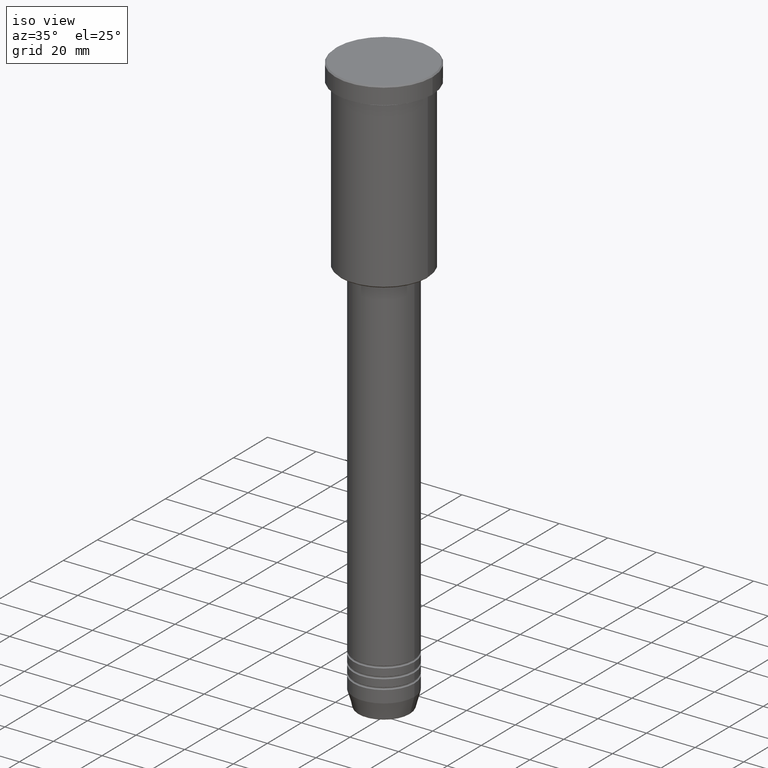
[diagram: clean part render]
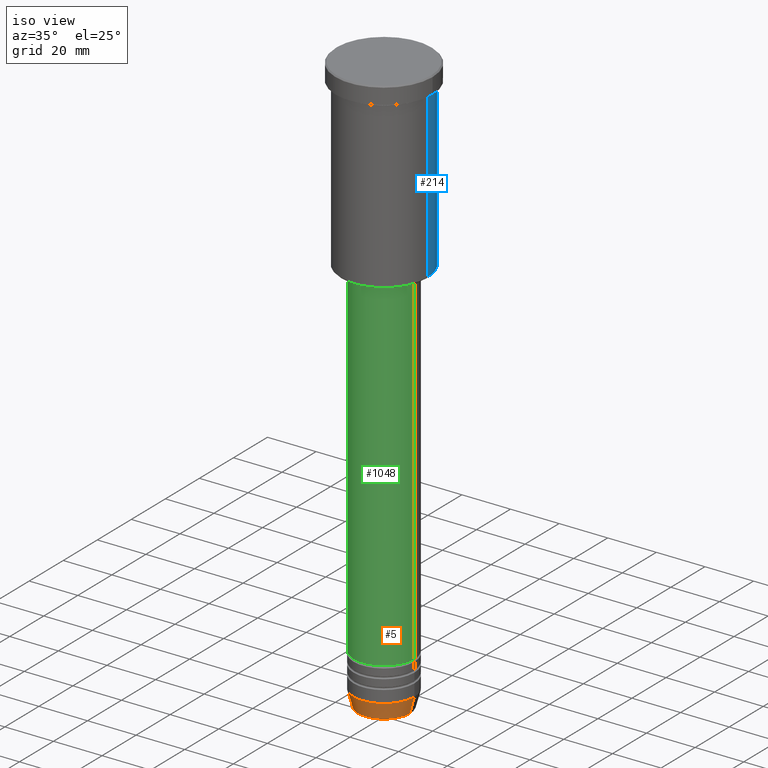
[diagram: same view with three faces highlighted in distinct colors, each labeled with its STEP entity id]
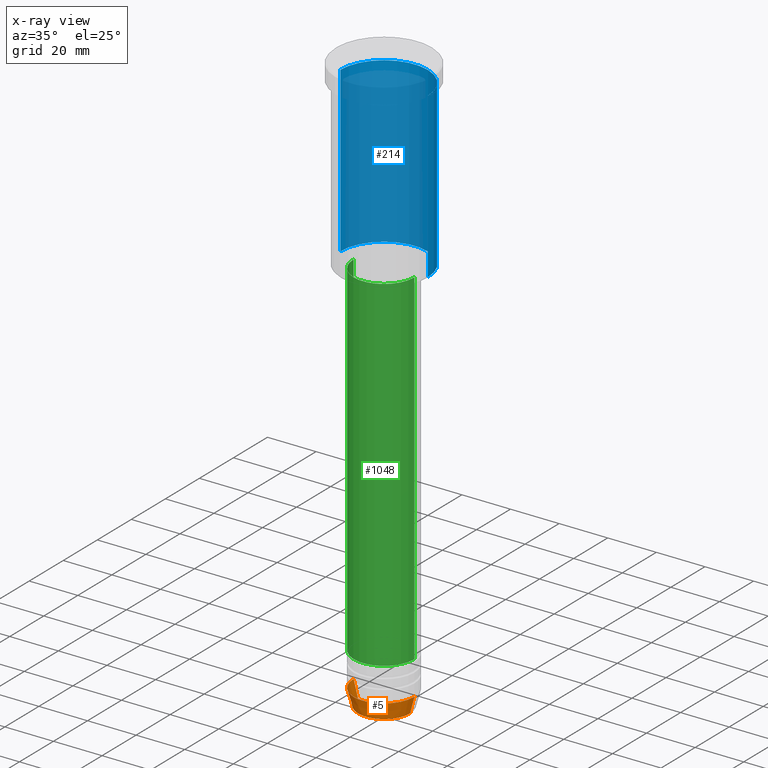
[diagram: x-ray of the same camera — body ghosted, the three highlighted faces saturated]
A machine part, iso view with three faces highlighted in distinct colors.
The next image is the same camera in x-ray (body ghosted, the three faces saturated) — at least one of them is partly hidden behind the body in this view.
Their STEP definitions:

[orange] entity #5 — the highlighted conical surface has half-angle 15 deg.
#5 = ADVANCED_FACE ( 'NONE', ( #466 ), #107, .T. ) ;
#89 = AXIS2_PLACEMENT_3D ( 'NONE', #374, #559, #284 ) ;
#103 = DIRECTION ( 'NONE',  ( 1.000000000000000000, 0.000000000000000000, 0.000000000000000000 ) ) ;
#107 = CONICAL_SURFACE ( 'NONE', #89, 12.50000000000000000, 0.2617993877991500740 ) ;
#155 = LINE ( 'NONE', #880, #540 ) ;
#186 = EDGE_LOOP ( 'NONE', ( #1042, #698, #535, #534 ) ) ;
#218 = CIRCLE ( 'NONE', #470, 10.72365507213719127 ) ;
#258 = LINE ( 'NONE', #628, #670 ) ;
#284 = DIRECTION ( 'NONE',  ( 1.000000000000000000, 0.000000000000000000, 0.000000000000000000 ) ) ;
#301 = DIRECTION ( 'NONE',  ( 1.000000000000000000, 0.000000000000000000, 0.000000000000000000 ) ) ;
#315 = AXIS2_PLACEMENT_3D ( 'NONE', #394, #768, #301 ) ;
#333 = DIRECTION ( 'NONE',  ( 0.2588190451025213501, 0.000000000000000000, 0.9659258262890680902 ) ) ;
#351 = DIRECTION ( 'NONE',  ( -0.2588190451025213501, 3.169619151431772337E-17, 0.9659258262890680902 ) ) ;
#355 = VERTEX_POINT ( 'NONE', #824 ) ;
#374 = CARTESIAN_POINT ( 'NONE',  ( 0.000000000000000000, 0.000000000000000000, -233.0000000000000000 ) ) ;
#394 = CARTESIAN_POINT ( 'NONE',  ( 0.000000000000000000, 0.000000000000000000, -233.0000000000000000 ) ) ;
#466 = FACE_OUTER_BOUND ( 'NONE', #186, .T. ) ;
#470 = AXIS2_PLACEMENT_3D ( 'NONE', #1094, #1004, #103 ) ;
#534 = ORIENTED_EDGE ( 'NONE', *, *, #1144, .F. ) ;
#535 = ORIENTED_EDGE ( 'NONE', *, *, #859, .T. ) ;
#540 = VECTOR ( 'NONE', #333, 1000.000000000000000 ) ;
#559 = DIRECTION ( 'NONE',  ( -0.000000000000000000, -0.000000000000000000, 1.000000000000000000 ) ) ;
#628 = CARTESIAN_POINT ( 'NONE',  ( -12.50000000000000000, 1.530808498934191521E-15, -233.0000000000000000 ) ) ;
#670 = VECTOR ( 'NONE', #351, 1000.000000000000000 ) ;
#698 = ORIENTED_EDGE ( 'NONE', *, *, #986, .T. ) ;
#743 = CARTESIAN_POINT ( 'NONE',  ( -10.72365507213719127, 1.422038742429750516E-15, -239.6294095225512706 ) ) ;
#758 = VERTEX_POINT ( 'NONE', #969 ) ;
#768 = DIRECTION ( 'NONE',  ( -0.000000000000000000, -0.000000000000000000, 1.000000000000000000 ) ) ;
#824 = CARTESIAN_POINT ( 'NONE',  ( 12.50000000000000000, 0.000000000000000000, -233.0000000000000000 ) ) ;
#855 = CARTESIAN_POINT ( 'NONE',  ( 10.72365507213719127, 0.000000000000000000, -239.6294095225512706 ) ) ;
#859 = EDGE_CURVE ( 'NONE', #1102, #355, #155, .T. ) ;
#880 = CARTESIAN_POINT ( 'NONE',  ( 12.50000000000000000, 0.000000000000000000, -233.0000000000000000 ) ) ;
#969 = CARTESIAN_POINT ( 'NONE',  ( -12.50000000000000000, 1.530808498934191521E-15, -233.0000000000000000 ) ) ;
#986 = EDGE_CURVE ( 'NONE', #1127, #1102, #218, .T. ) ;
#1004 = DIRECTION ( 'NONE',  ( -0.000000000000000000, -0.000000000000000000, 1.000000000000000000 ) ) ;
#1042 = ORIENTED_EDGE ( 'NONE', *, *, #1162, .F. ) ;
#1094 = CARTESIAN_POINT ( 'NONE',  ( 0.000000000000000000, 0.000000000000000000, -239.6294095225512706 ) ) ;
#1102 = VERTEX_POINT ( 'NONE', #855 ) ;
#1127 = VERTEX_POINT ( 'NONE', #743 ) ;
#1144 = EDGE_CURVE ( 'NONE', #758, #355, #1174, .T. ) ;
#1162 = EDGE_CURVE ( 'NONE', #1127, #758, #258, .T. ) ;
#1174 = CIRCLE ( 'NONE', #315, 12.50000000000000000 ) ;

[blue] entity #214 — the highlighted cylindrical surface (partial cylindrical patch) has radius 18 mm, axis along (-0, -0, 1).
#7 = DIRECTION ( 'NONE',  ( -0.000000000000000000, -0.000000000000000000, 1.000000000000000000 ) ) ;
#30 = DIRECTION ( 'NONE',  ( 1.000000000000000000, 0.000000000000000000, 0.000000000000000000 ) ) ;
#46 = EDGE_CURVE ( 'NONE', #174, #456, #858, .T. ) ;
#56 = ORIENTED_EDGE ( 'NONE', *, *, #937, .T. ) ;
#108 = CARTESIAN_POINT ( 'NONE',  ( 0.000000000000000000, 0.000000000000000000, -75.49999999999997158 ) ) ;
#174 = VERTEX_POINT ( 'NONE', #1166 ) ;
#177 = CIRCLE ( 'NONE', #349, 18.00000000000000000 ) ;
#214 = ADVANCED_FACE ( 'NONE', ( #483 ), #849, .T. ) ;
#251 = CARTESIAN_POINT ( 'NONE',  ( -18.00000000000000000, 2.204364238465235428E-15, -7.999999999999996447 ) ) ;
#275 = LINE ( 'NONE', #938, #1141 ) ;
#349 = AXIS2_PLACEMENT_3D ( 'NONE', #818, #459, #956 ) ;
#385 = AXIS2_PLACEMENT_3D ( 'NONE', #600, #398, #30 ) ;
#398 = DIRECTION ( 'NONE',  ( -0.000000000000000000, -0.000000000000000000, 1.000000000000000000 ) ) ;
#411 = CARTESIAN_POINT ( 'NONE',  ( 18.00000000000000000, 0.000000000000000000, 0.000000000000000000 ) ) ;
#456 = VERTEX_POINT ( 'NONE', #994 ) ;
#459 = DIRECTION ( 'NONE',  ( -0.000000000000000000, -0.000000000000000000, 1.000000000000000000 ) ) ;
#483 = FACE_OUTER_BOUND ( 'NONE', #547, .T. ) ;
#495 = VERTEX_POINT ( 'NONE', #814 ) ;
#547 = EDGE_LOOP ( 'NONE', ( #56, #674, #822, #627 ) ) ;
#574 = VERTEX_POINT ( 'NONE', #251 ) ;
#600 = CARTESIAN_POINT ( 'NONE',  ( 0.000000000000000000, 0.000000000000000000, 0.000000000000000000 ) ) ;
#606 = AXIS2_PLACEMENT_3D ( 'NONE', #108, #7, #833 ) ;
#627 = ORIENTED_EDGE ( 'NONE', *, *, #46, .F. ) ;
#674 = ORIENTED_EDGE ( 'NONE', *, *, #991, .T. ) ;
#703 = CIRCLE ( 'NONE', #606, 18.00000000000000000 ) ;
#759 = DIRECTION ( 'NONE',  ( -0.000000000000000000, -0.000000000000000000, 1.000000000000000000 ) ) ;
#762 = VECTOR ( 'NONE', #783, 1000.000000000000000 ) ;
#783 = DIRECTION ( 'NONE',  ( -0.000000000000000000, -0.000000000000000000, 1.000000000000000000 ) ) ;
#814 = CARTESIAN_POINT ( 'NONE',  ( -18.00000000000000000, 2.204364238465235428E-15, -75.49999999999997158 ) ) ;
#818 = CARTESIAN_POINT ( 'NONE',  ( 0.000000000000000000, 0.000000000000000000, -7.999999999999996447 ) ) ;
#822 = ORIENTED_EDGE ( 'NONE', *, *, #1175, .F. ) ;
#833 = DIRECTION ( 'NONE',  ( -1.000000000000000000, 0.000000000000000000, 0.000000000000000000 ) ) ;
#849 = CYLINDRICAL_SURFACE ( 'NONE', #385, 18.00000000000000000 ) ;
#858 = LINE ( 'NONE', #411, #762 ) ;
#937 = EDGE_CURVE ( 'NONE', #174, #495, #703, .T. ) ;
#938 = CARTESIAN_POINT ( 'NONE',  ( -18.00000000000000000, 2.204364238465235428E-15, 0.000000000000000000 ) ) ;
#956 = DIRECTION ( 'NONE',  ( 1.000000000000000000, 0.000000000000000000, 0.000000000000000000 ) ) ;
#991 = EDGE_CURVE ( 'NONE', #495, #574, #275, .T. ) ;
#994 = CARTESIAN_POINT ( 'NONE',  ( 18.00000000000000000, 0.000000000000000000, -7.999999999999996447 ) ) ;
#1141 = VECTOR ( 'NONE', #759, 1000.000000000000000 ) ;
#1166 = CARTESIAN_POINT ( 'NONE',  ( 18.00000000000000000, 0.000000000000000000, -75.49999999999997158 ) ) ;
#1175 = EDGE_CURVE ( 'NONE', #456, #574, #177, .T. ) ;

[green] entity #1048 — the highlighted cylindrical surface (partial cylindrical patch) has radius 12.5 mm, axis along (-0, -0, 1).
#1 = CYLINDRICAL_SURFACE ( 'NONE', #409, 12.50000000000000000 ) ;
#51 = AXIS2_PLACEMENT_3D ( 'NONE', #548, #625, #653 ) ;
#81 = CARTESIAN_POINT ( 'NONE',  ( -12.50000000000000000, 1.530808498934191521E-15, -76.99999999999998579 ) ) ;
#203 = LINE ( 'NONE', #405, #295 ) ;
#210 = EDGE_LOOP ( 'NONE', ( #903, #1112, #449, #380 ) ) ;
#225 = LINE ( 'NONE', #787, #950 ) ;
#295 = VECTOR ( 'NONE', #518, 1000.000000000000000 ) ;
#319 = DIRECTION ( 'NONE',  ( -0.000000000000000000, -0.000000000000000000, 1.000000000000000000 ) ) ;
#362 = FACE_OUTER_BOUND ( 'NONE', #210, .T. ) ;
#375 = DIRECTION ( 'NONE',  ( -0.000000000000000000, -0.000000000000000000, 1.000000000000000000 ) ) ;
#380 = ORIENTED_EDGE ( 'NONE', *, *, #853, .F. ) ;
#405 = CARTESIAN_POINT ( 'NONE',  ( -12.50000000000000000, 1.530808498934191521E-15, 0.000000000000000000 ) ) ;
#409 = AXIS2_PLACEMENT_3D ( 'NONE', #647, #375, #736 ) ;
#424 = CARTESIAN_POINT ( 'NONE',  ( 12.50000000000000000, 0.000000000000000000, -76.99999999999998579 ) ) ;
#449 = ORIENTED_EDGE ( 'NONE', *, *, #688, .T. ) ;
#513 = DIRECTION ( 'NONE',  ( 1.000000000000000000, 0.000000000000000000, 0.000000000000000000 ) ) ;
#518 = DIRECTION ( 'NONE',  ( -0.000000000000000000, -0.000000000000000000, 1.000000000000000000 ) ) ;
#548 = CARTESIAN_POINT ( 'NONE',  ( 0.000000000000000000, 0.000000000000000000, -219.0000000000000000 ) ) ;
#591 = VERTEX_POINT ( 'NONE', #836 ) ;
#614 = CARTESIAN_POINT ( 'NONE',  ( 12.50000000000000000, 0.000000000000000000, -219.0000000000000000 ) ) ;
#625 = DIRECTION ( 'NONE',  ( -0.000000000000000000, -0.000000000000000000, 1.000000000000000000 ) ) ;
#647 = CARTESIAN_POINT ( 'NONE',  ( 0.000000000000000000, 0.000000000000000000, 0.000000000000000000 ) ) ;
#653 = DIRECTION ( 'NONE',  ( 1.000000000000000000, 0.000000000000000000, 0.000000000000000000 ) ) ;
#688 = EDGE_CURVE ( 'NONE', #1179, #871, #225, .T. ) ;
#719 = EDGE_CURVE ( 'NONE', #591, #1179, #979, .T. ) ;
#736 = DIRECTION ( 'NONE',  ( 1.000000000000000000, 0.000000000000000000, 0.000000000000000000 ) ) ;
#745 = EDGE_CURVE ( 'NONE', #591, #856, #203, .T. ) ;
#787 = CARTESIAN_POINT ( 'NONE',  ( 12.50000000000000000, 0.000000000000000000, 0.000000000000000000 ) ) ;
#836 = CARTESIAN_POINT ( 'NONE',  ( -12.50000000000000000, 1.530808498934191521E-15, -219.0000000000000000 ) ) ;
#853 = EDGE_CURVE ( 'NONE', #856, #871, #1054, .T. ) ;
#856 = VERTEX_POINT ( 'NONE', #81 ) ;
#871 = VERTEX_POINT ( 'NONE', #424 ) ;
#902 = DIRECTION ( 'NONE',  ( -0.000000000000000000, -0.000000000000000000, 1.000000000000000000 ) ) ;
#903 = ORIENTED_EDGE ( 'NONE', *, *, #745, .F. ) ;
#950 = VECTOR ( 'NONE', #319, 1000.000000000000000 ) ;
#977 = CARTESIAN_POINT ( 'NONE',  ( 0.000000000000000000, 0.000000000000000000, -76.99999999999998579 ) ) ;
#979 = CIRCLE ( 'NONE', #51, 12.50000000000000000 ) ;
#1041 = AXIS2_PLACEMENT_3D ( 'NONE', #977, #902, #513 ) ;
#1048 = ADVANCED_FACE ( 'NONE', ( #362 ), #1, .T. ) ;
#1054 = CIRCLE ( 'NONE', #1041, 12.50000000000000000 ) ;
#1112 = ORIENTED_EDGE ( 'NONE', *, *, #719, .T. ) ;
#1179 = VERTEX_POINT ( 'NONE', #614 ) ;